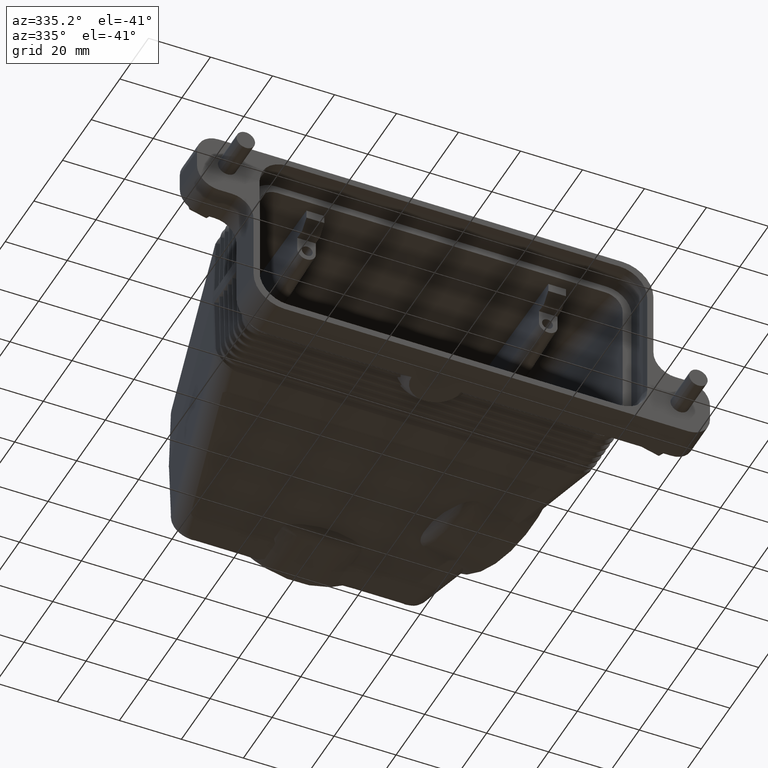
[diagram: clean part render]
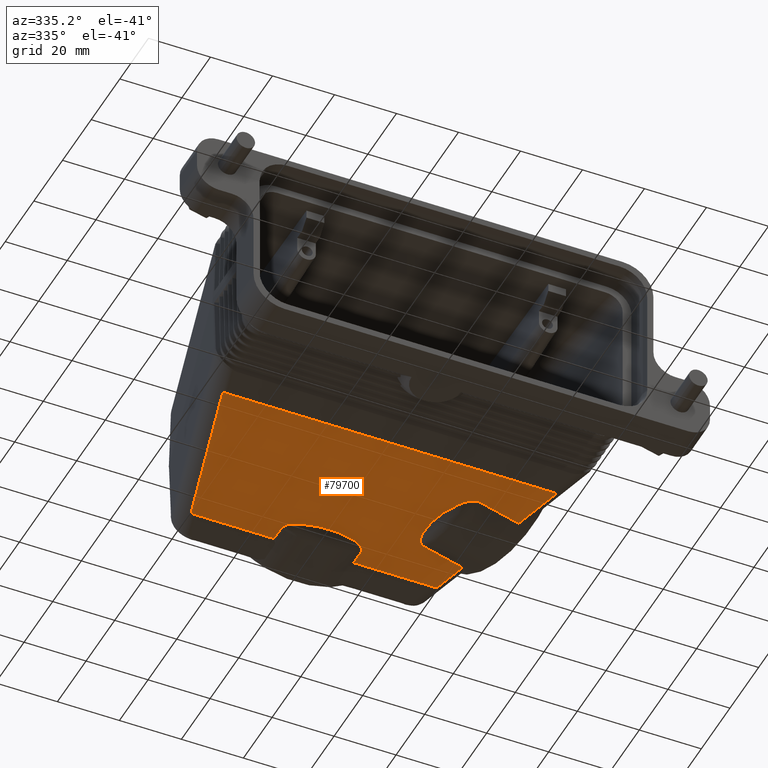
[diagram: same view with one face highlighted and labeled with its STEP entity id]
A machine part, auxiliary view. The second image highlights one B-rep face of the part: STEP entity #79700.
In plain terms, the highlighted planar face has unit normal (0, 0, -1).
Its self-contained STEP definition (entity closure, byte-faithful):
#72690=CARTESIAN_POINT('',(-16.382151999333,1.8228898536252,-13.));
#72700=DIRECTION('',(0.,0.,-1.));
#72710=DIRECTION('',(-1.,0.,0.));
#72720=AXIS2_PLACEMENT_3D('',#72690,#72700,#72710);
#72730=PLANE('',#72720);
#72740=CARTESIAN_POINT('',(-10.2698614213349,87.5367836871194,-13.));
#72750=DIRECTION('',(0.,-1.,0.));
#72760=VECTOR('',#72750,1.);
#72770=LINE('',#72740,#72760);
#72780=CARTESIAN_POINT('',(-10.2698614213349,93.794143,-13.));
#72790=VERTEX_POINT('',#72780);
#72800=CARTESIAN_POINT('',(-10.2698614213349,88.7794243742386,-13.));
#72810=VERTEX_POINT('',#72800);
#72820=EDGE_CURVE('',#72790,#72810,#72770,.T.);
#72830=ORIENTED_EDGE('',*,*,#72820,.F.);
#72840=CARTESIAN_POINT('',(-23.115094,88.7794243742386,13.));
#72850=DIRECTION('',(0.,1.,0.));
#72860=DIRECTION('',(-1.,0.,0.));
#72870=AXIS2_PLACEMENT_3D('',#72840,#72850,#72860);
#72880=TOROIDAL_SURFACE('',#72870,23.,6.);
#72890=CARTESIAN_POINT('',(-10.2698614213349,88.7794243742387,-13.));
#72900=CARTESIAN_POINT('',(-10.2698614213349,88.7441683574909,-13.));
#72910=CARTESIAN_POINT('',(-10.2705633258133,88.7089613604424,-13.));
#72920=CARTESIAN_POINT('',(-10.2719591929961,88.6738373257415,-13.));
#72930=CARTESIAN_POINT('',(-10.2733544085103,88.6387296888978,-13.));
#72940=CARTESIAN_POINT('',(-10.2754442702357,88.6036463248573,-13.));
#72950=CARTESIAN_POINT('',(-10.2782326359868,88.5685455996329,-13.));
#72960=CARTESIAN_POINT('',(-10.2810205318663,88.5334507892829,-13.));
#72970=CARTESIAN_POINT('',(-10.2845056667718,88.4983639655481,
-12.9999999999999));
#72980=CARTESIAN_POINT('',(-10.2886848929599,88.4633176965488,
-12.9999999999999));
#72990=CARTESIAN_POINT('',(-10.2928641095357,88.4282715081561,
-12.9999999999999));
#73000=CARTESIAN_POINT('',(-10.2977374098294,88.3932661317754,
-12.9999999999996));
#73010=CARTESIAN_POINT('',(-10.3032972452355,88.3583359123003,
-12.9999999999996));
#73020=CARTESIAN_POINT('',(-10.3088570721958,88.3234057458868,
-12.9999999999996));
#73030=CARTESIAN_POINT('',(-10.31510340512,88.2885509949185,
-12.999999999999));
#73040=CARTESIAN_POINT('',(-10.3220241278034,88.2538067962249,
-12.999999999999));
#73050=CARTESIAN_POINT('',(-10.3289448448673,88.219062625743,
-12.999999999999));
#73060=CARTESIAN_POINT('',(-10.3365399034145,88.1844292588844,
-12.999999999998));
#73070=CARTESIAN_POINT('',(-10.3447926524544,88.1499417308457,
-12.999999999998));
#73080=CARTESIAN_POINT('',(-10.3530454000627,88.1154542087899,
-12.999999999998));
#73090=CARTESIAN_POINT('',(-10.3619557740423,88.0811127628782,
-12.9999999999973));
#73100=CARTESIAN_POINT('',(-10.3715027943142,88.0469515373046,
-12.9999999999973));
#73110=CARTESIAN_POINT('',(-10.3810498184557,88.012790297885,
-12.9999999999973));
#73120=CARTESIAN_POINT('',(-10.391233412655,87.9788094969776,
-12.9999999999973));
#73130=CARTESIAN_POINT('',(-10.4020286181067,87.9450417072836,
-12.9999999999973));
#73140=CARTESIAN_POINT('',(-10.4128238336581,87.9112738859973,
-12.9999999999973));
#73150=CARTESIAN_POINT('',(-10.42423057594,87.8777192715175,
-12.9999999999983));
#73160=CARTESIAN_POINT('',(-10.436220375027,87.8444082912519,
-12.9999999999983));
#73170=CARTESIAN_POINT('',(-10.4482101912658,87.811097263334,
-12.9999999999983));
#73180=CARTESIAN_POINT('',(-10.4607829751227,87.7780300407687,
-12.9999999999995));
#73190=CARTESIAN_POINT('',(-10.4739073055861,87.7452344310102,
-12.9999999999995));
#73200=CARTESIAN_POINT('',(-10.5001624427278,87.6796270284646,
-12.9999999999995));
#73210=CARTESIAN_POINT('',(-10.5285950860882,87.6151757965529,-13.));
#73220=CARTESIAN_POINT('',(-10.5590158642711,87.5518820210018,-13.));
#73230=CARTESIAN_POINT('',(-10.5894652454807,87.4885287337069,-13.));
#73240=CARTESIAN_POINT('',(-10.622027821136,87.4260865149887,
-12.9999999999842));
#73250=CARTESIAN_POINT('',(-10.6565412025883,87.3646210714529,
-12.9999999999842));
#73260=CARTESIAN_POINT('',(-10.6910544734411,87.3031558248858,
-12.9999999999842));
#73270=CARTESIAN_POINT('',(-10.7275180521451,87.2426684790179,-13.));
#73280=CARTESIAN_POINT('',(-10.7657555276422,87.1832242523695,-13.));
#73290=CARTESIAN_POINT('',(-10.8039929481112,87.123780111268,-13.));
#73300=CARTESIAN_POINT('',(-10.8440036449816,87.0653800898206,-13.));
#73310=CARTESIAN_POINT('',(-10.8855985614645,87.0080844266053,-13.));
#73320=CARTESIAN_POINT('',(-10.9271934782373,86.9507887629908,-13.));
#73330=CARTESIAN_POINT('',(-10.9703719639585,86.8945982750502,-13.));
#73340=CARTESIAN_POINT('',(-11.0149346042383,86.8395652293547,-13.));
#73350=CARTESIAN_POINT('',(-11.0594972947849,86.7845321215818,-13.));
#73360=CARTESIAN_POINT('',(-11.1054435208509,86.7306570833294,
-12.9999999999694));
#73370=CARTESIAN_POINT('',(-11.1525661431031,86.6779827269103,
-12.9999999999694));
#73380=CARTESIAN_POINT('',(-11.1996888586925,86.6253082661573,
-12.9999999999694));
#73390=CARTESIAN_POINT('',(-11.2479874173027,86.5738349441023,
-12.9999999999999));
#73400=CARTESIAN_POINT('',(-11.2972495915493,86.5235950392977,
-12.9999999999999));
#73410=CARTESIAN_POINT('',(-11.3218842156875,86.4984714796796,
-12.9999999999999));
#73420=CARTESIAN_POINT('',(-11.34673615355,86.4736788485884,
-12.9999999999997));
#73430=CARTESIAN_POINT('',(-11.3718781129352,86.4491242103651,
-12.9999999999997));
#73440=CARTESIAN_POINT('',(-11.3970159853523,86.4245735636375,
-12.9999999999997));
#73450=CARTESIAN_POINT('',(-11.4224213416233,86.4002839997991,
-12.9999999999849));
#73460=CARTESIAN_POINT('',(-11.448081661591,86.3762509907311,
-12.9999999999849));
#73470=CARTESIAN_POINT('',(-11.499402302012,86.3281849721404,
-12.9999999999849));
#73480=CARTESIAN_POINT('',(-11.5517425768027,86.2811448937615,-13.));
#73490=CARTESIAN_POINT('',(-11.6050066550675,86.2350969685196,-13.));
#73500=CARTESIAN_POINT('',(-11.6582707775688,86.1890490050344,-13.));
#73510=CARTESIAN_POINT('',(-11.7124589948878,86.1439930556784,-13.));
#73520=CARTESIAN_POINT('',(-11.7674798604908,86.0998983347892,-13.));
#73530=CARTESIAN_POINT('',(-11.8225007468189,86.0558035972904,-13.));
#73540=CARTESIAN_POINT('',(-11.8783544981297,86.0126700092074,-13.));
#73550=CARTESIAN_POINT('',(-11.9349525348068,85.9704695170035,-13.));
#73560=CARTESIAN_POINT('',(-12.0481482638747,85.8860687893016,-13.));
#73570=CARTESIAN_POINT('',(-12.1643216553677,85.8053977594636,-13.));
#73580=CARTESIAN_POINT('',(-12.2827805430061,85.7282592535334,-13.));
#73590=CARTESIAN_POINT('',(-12.4012394123477,85.6511207595179,-13.));
#73600=CARTESIAN_POINT('',(-12.5219860797627,85.577514797803,-13.));
#73610=CARTESIAN_POINT('',(-12.64433578855,85.507266478259,-13.));
#73620=CARTESIAN_POINT('',(-12.7055106296458,85.4721423261222,-13.));
#73630=CARTESIAN_POINT('',(-12.7670863077559,85.437857810125,
-12.9999999999985));
#73640=CARTESIAN_POINT('',(-12.8289770918813,85.4043921884262,
-12.9999999999985));
#73650=CARTESIAN_POINT('',(-12.8908725930641,85.3709240161174,
-12.9999999999985));
#73660=CARTESIAN_POINT('',(-12.9530354295124,85.3382981090075,
-12.9999999999854));
#73670=CARTESIAN_POINT('',(-13.0156419577173,85.3063637547771,
-12.9999999999854));
#73680=CARTESIAN_POINT('',(-13.0782354131716,85.2744360686987,
-12.9999999999854));
#73690=CARTESIAN_POINT('',(-13.1412093379758,85.2432339887852,-13.));
#73700=CARTESIAN_POINT('',(-13.2045333974804,85.2127236392176,-13.));
#73710=CARTESIAN_POINT('',(-13.267857498851,85.1822132694784,-13.));
#73720=CARTESIAN_POINT('',(-13.3315318544051,85.1523946056898,-13.));
#73730=CARTESIAN_POINT('',(-13.3955286816189,85.1232362430488,-13.));
#73740=CARTESIAN_POINT('',(-13.5235222765378,85.0649195448804,-13.));
#73750=CARTESIAN_POINT('',(-13.6528051973756,85.0092416336317,-13.));
#73760=CARTESIAN_POINT('',(-13.783176132093,84.9559784616022,-13.));
#73770=CARTESIAN_POINT('',(-13.9135473360645,84.9027151795686,-13.));
#73780=CARTESIAN_POINT('',(-14.0450087389892,84.8518664539964,-13.));
#73790=CARTESIAN_POINT('',(-14.1773777622079,84.8032384336845,-13.));
#73800=CARTESIAN_POINT('',(-14.3097468522386,84.7546103888282,-13.));
#73810=CARTESIAN_POINT('',(-14.4430250262096,84.7082030462674,-13.));
#73820=CARTESIAN_POINT('',(-14.5770392734894,84.6638470645765,-13.));
#73830=CARTESIAN_POINT('',(-14.7110534678495,84.619491100401,-13.));
#73840=CARTESIAN_POINT('',(-14.8458046971921,84.5771865749723,-13.));
#73850=CARTESIAN_POINT('',(-14.9811237758396,84.5367836871201,-13.));
#73860=B_SPLINE_CURVE_WITH_KNOTS('',3,(#72890,#72900,#72910,#72920,
#72930,#72940,#72950,#72960,#72970,#72980,#72990,#73000,#73010,#73020,
#73030,#73040,#73050,#73060,#73070,#73080,#73090,#73100,#73110,#73120,
#73130,#73140,#73150,#73160,#73170,#73180,#73190,#73200,#73210,#73220,
#73230,#73240,#73250,#73260,#73270,#73280,#73290,#73300,#73310,#73320,
#73330,#73340,#73350,#73360,#73370,#73380,#73390,#73400,#73410,#73420,
#73430,#73440,#73450,#73460,#73470,#73480,#73490,#73500,#73510,#73520,
#73530,#73540,#73550,#73560,#73570,#73580,#73590,#73600,#73610,#73620,
#73630,#73640,#73650,#73660,#73670,#73680,#73690,#73700,#73710,#73720,
#73730,#73740,#73750,#73760,#73770,#73780,#73790,#73800,#73810,#73820,
#73830,#73840,#73850),.UNSPECIFIED.,.F.,.F.,(4,3,3,3,3,3,3,3,3,3,3,3,3,3
,3,3,3,3,3,3,3,3,3,3,3,3,3,3,3,3,3,3,4),(0.,0.105614828074848,
0.211100154996272,0.3168527393641,0.422853359561736,0.529053383189475,
0.635391226949507,0.741794930136564,0.848184421796655,0.954473583815512,
1.06057221455941,1.27186703660491,1.48303731586988,1.6948060991172,
1.90705176136338,2.11950641877278,2.33178082575836,2.54338580403469,
2.6488170825173,2.75425849919629,2.96534092942479,3.17672063954875,
3.38838893365118,3.81231166485151,4.23611225661454,4.44748385732094,
4.65832854388547,4.86916106926234,5.08008499408407,5.50230422713393,
5.92508493217498,6.34837559048084,6.77198199247476),.UNSPECIFIED.);
#73870=SURFACE_CURVE('',#73860,(#72880,#72730),.CURVE_3D.);
#73880=CARTESIAN_POINT('',(-14.9811237756801,84.5367836871677,-13.));
#73890=VERTEX_POINT('',#73880);
#73900=EDGE_CURVE('',#72810,#73890,#73870,.T.);
#73910=ORIENTED_EDGE('',*,*,#73900,.F.);
#73920=CARTESIAN_POINT('',(-23.115094,82.294143,13.));
#73930=DIRECTION('',(0.,1.,0.));
#73940=DIRECTION('',(0.,0.,1.));
#73950=AXIS2_PLACEMENT_3D('',#73920,#73930,#73940);
#73960=CONICAL_SURFACE('',#73950,25.,0.785398163397426);
#73970=CARTESIAN_POINT('',(-14.9811237758418,84.5367836871195,-13.));
#73980=CARTESIAN_POINT('',(-15.3107595849481,84.4383626901654,-13.));
#73990=CARTESIAN_POINT('',(-15.6422448402959,84.344841606654,-13.));
#74000=CARTESIAN_POINT('',(-15.9753514743577,84.2566340446432,-13.));
#74010=CARTESIAN_POINT('',(-16.3084576477654,84.168426604615,-13.));
#74020=CARTESIAN_POINT('',(-16.6431838187528,84.0855337994273,-13.));
#74030=CARTESIAN_POINT('',(-16.9792783948373,84.0083383489256,-13.));
#74040=CARTESIAN_POINT('',(-17.1473254394704,83.9697406795819,-13.));
#74050=CARTESIAN_POINT('',(-17.3157139577886,83.9325668522344,-13.));
#74060=CARTESIAN_POINT('',(-17.4844103088486,83.8968608842652,-13.));
#74070=CARTESIAN_POINT('',(-17.6531066419241,83.8611549201025,-13.));
#74080=CARTESIAN_POINT('',(-17.8221107328606,83.8269168535102,-13.));
#74090=CARTESIAN_POINT('',(-17.9913877433026,83.7941876377911,-13.));
#74100=CARTESIAN_POINT('',(-18.1606647427989,83.7614584241883,-13.));
#74110=CARTESIAN_POINT('',(-18.330214575469,83.7302380990079,-13.));
#74120=CARTESIAN_POINT('',(-18.5000013969685,83.7005641837681,-13.));
#74130=CARTESIAN_POINT('',(-18.6697882158254,83.6708902689901,-13.));
#74140=CARTESIAN_POINT('',(-18.8398119257784,83.6427627999782,-13.));
#74150=CARTESIAN_POINT('',(-19.0100359203934,83.6162155216869,-13.));
#74160=CARTESIAN_POINT('',(-19.1802599220086,83.5896682423039,-13.));
#74170=CARTESIAN_POINT('',(-19.3506840995636,83.5647011865831,-13.));
#74180=CARTESIAN_POINT('',(-19.5212713834715,83.5413440126618,-13.));
#74190=CARTESIAN_POINT('',(-19.6918586854138,83.5179868362711,-13.));
#74200=CARTESIAN_POINT('',(-19.862608974806,83.496239570547,-13.));
#74210=CARTESIAN_POINT('',(-20.0334850740385,83.4761275231901,-13.));
#74220=CARTESIAN_POINT('',(-20.2043612037568,83.456015472245,-13.));
#74230=CARTESIAN_POINT('',(-20.3753630154552,83.4375386632954,-13.));
#74240=CARTESIAN_POINT('',(-20.5464536343268,83.4207178487659,-13.));
#74250=CARTESIAN_POINT('',(-20.7175442975665,83.4038970298743,-13.));
#74260=CARTESIAN_POINT('',(-20.8887236327125,83.3887322227195,
-12.9999999999991));
#74270=CARTESIAN_POINT('',(-21.0599555321809,83.3752394900177,
-12.9999999999991));
#74280=CARTESIAN_POINT('',(-21.2311874911168,83.3617467526301,
-12.9999999999991));
#74290=CARTESIAN_POINT('',(-21.4024718737465,83.3499260997879,
-12.9999999999998));
#74300=CARTESIAN_POINT('',(-21.5737738524116,83.3397888510306,
-12.9999999999998));
#74310=CARTESIAN_POINT('',(-21.7450759071704,83.3296515977702,
-12.9999999999998));
#74320=CARTESIAN_POINT('',(-21.9163954145583,83.3211977507491,-13.));
#74330=CARTESIAN_POINT('',(-22.0876993830273,83.314433922643,-13.));
#74340=CARTESIAN_POINT('',(-22.2590034452575,83.3076700908349,-13.));
#74350=CARTESIAN_POINT('',(-22.430291824852,83.3025962717284,-13.));
#74360=CARTESIAN_POINT('',(-22.6015339568222,83.2992145038038,-13.));
#74370=CARTESIAN_POINT('',(-22.7727762012005,83.2958327336593,-13.));
#74380=CARTESIAN_POINT('',(-22.9439720567168,83.294143,-13.));
#74390=CARTESIAN_POINT('',(-23.115094,83.294143,-13.));
#74400=CARTESIAN_POINT('',(-23.2862159432832,83.294143,-13.));
#74410=CARTESIAN_POINT('',(-23.4574117987995,83.2958327336593,-13.));
#74420=CARTESIAN_POINT('',(-23.6286540431778,83.2992145038038,-13.));
#74430=CARTESIAN_POINT('',(-23.799896175148,83.3025962717284,-13.));
#74440=CARTESIAN_POINT('',(-23.9711845547425,83.3076700908348,-13.));
#74450=CARTESIAN_POINT('',(-24.1424886169726,83.314433922643,-13.));
#74460=CARTESIAN_POINT('',(-24.3137925854417,83.3211977507491,-13.));
#74470=CARTESIAN_POINT('',(-24.4851120928296,83.3296515977702,
-12.9999999999998));
#74480=CARTESIAN_POINT('',(-24.6564141475884,83.3397888510305,
-12.9999999999998));
#74490=CARTESIAN_POINT('',(-24.8277161262535,83.3499260997878,
-12.9999999999998));
#74500=CARTESIAN_POINT('',(-24.9990005088832,83.3617467526301,
-12.9999999999991));
#74510=CARTESIAN_POINT('',(-25.1702324678191,83.3752394900177,
-12.9999999999991));
#74520=CARTESIAN_POINT('',(-25.3414643672867,83.3887322227194,
-12.9999999999991));
#74530=CARTESIAN_POINT('',(-25.5126437024327,83.4038970298743,-13.));
#74540=CARTESIAN_POINT('',(-25.6837343656732,83.4207178487659,-13.));
#74550=CARTESIAN_POINT('',(-25.8548249845448,83.4375386632954,-13.));
#74560=CARTESIAN_POINT('',(-26.0258267962432,83.456015472245,-13.));
#74570=CARTESIAN_POINT('',(-26.1967029259615,83.4761275231901,-13.));
#74580=CARTESIAN_POINT('',(-26.3675790251929,83.4962395705469,-13.));
#74590=CARTESIAN_POINT('',(-26.5383293145851,83.517986836271,-13.));
#74600=CARTESIAN_POINT('',(-26.7089166165285,83.5413440126618,-13.));
#74610=CARTESIAN_POINT('',(-26.8795039004352,83.5647011865829,-13.));
#74620=CARTESIAN_POINT('',(-27.0499280779902,83.5896682423037,-13.));
#74630=CARTESIAN_POINT('',(-27.2201520796066,83.6162155216869,-13.));
#74640=CARTESIAN_POINT('',(-27.3903760742215,83.6427627999782,-13.));
#74650=CARTESIAN_POINT('',(-27.5603997841745,83.6708902689901,-13.));
#74660=CARTESIAN_POINT('',(-27.7301866030314,83.7005641837681,-13.));
#74670=CARTESIAN_POINT('',(-27.8999734245297,83.7302380990077,-13.));
#74680=CARTESIAN_POINT('',(-28.0695232571999,83.7614584241881,-13.));
#74690=CARTESIAN_POINT('',(-28.2388002566974,83.7941876377911,-13.));
#74700=CARTESIAN_POINT('',(-28.4080772671394,83.8269168535102,-13.));
#74710=CARTESIAN_POINT('',(-28.5770813580759,83.8611549201025,-13.));
#74720=CARTESIAN_POINT('',(-28.7457776911514,83.8968608842651,-13.));
#74730=CARTESIAN_POINT('',(-28.9144740421811,83.9325668522279,-13.));
#74740=CARTESIAN_POINT('',(-29.0828625605848,83.9697406795946,-13.));
#74750=CARTESIAN_POINT('',(-29.2509096051626,84.0083383489256,-13.));
#74760=CARTESIAN_POINT('',(-29.5870041812472,84.0855337994273,-13.));
#74770=CARTESIAN_POINT('',(-29.9217303522345,84.1684266046149,-13.));
#74780=CARTESIAN_POINT('',(-30.2548365256423,84.2566340446432,-13.));
#74790=CARTESIAN_POINT('',(-30.5879431597041,84.344841606654,-13.));
#74800=CARTESIAN_POINT('',(-30.9194284150518,84.4383626901654,-13.));
#74810=CARTESIAN_POINT('',(-31.2490642241582,84.5367836871194,-13.));
#74820=B_SPLINE_CURVE_WITH_KNOTS('',3,(#73970,#73980,#73990,#74000,
#74010,#74020,#74030,#74040,#74050,#74060,#74070,#74080,#74090,#74100,
#74110,#74120,#74130,#74140,#74150,#74160,#74170,#74180,#74190,#74200,
#74210,#74220,#74230,#74240,#74250,#74260,#74270,#74280,#74290,#74300,
#74310,#74320,#74330,#74340,#74350,#74360,#74370,#74380,#74390,#74400,
#74410,#74420,#74430,#74440,#74450,#74460,#74470,#74480,#74490,#74500,
#74510,#74520,#74530,#74540,#74550,#74560,#74570,#74580,#74590,#74600,
#74610,#74620,#74630,#74640,#74650,#74660,#74670,#74680,#74690,#74700,
#74710,#74720,#74730,#74740,#74750,#74760,#74770,#74780,#74790,#74800,
#74810),.UNSPECIFIED.,.F.,.F.,(4,3,3,3,3,3,3,3,3,3,3,3,3,3,3,3,3,3,3,3,3
,3,3,3,3,3,3,3,4),(0.,1.03298576064086,2.06720896143214,2.58450197661142
,3.10177831785828,3.61894404973583,4.13591347124195,4.65260986712268,
5.16896633787134,5.68492672402671,6.20044664120477,6.71549464179744,
7.23005351922368,7.74412176568094,8.25771519300082,8.7713086203207,
9.28537686677766,9.79993574420346,10.3149837447961,10.830503661974,
11.3464640481292,11.8628205188778,12.3795169147586,12.8964863362651,
13.4136520681432,13.9309284093902,14.4482214245693,15.4824446253603,
16.5154303860008),.UNSPECIFIED.);
#74830=SURFACE_CURVE('',#74820,(#73960,#72730),.CURVE_3D.);
#74840=CARTESIAN_POINT('',(-31.2490642243177,84.536783687167,-13.));
#74850=VERTEX_POINT('',#74840);
#74860=EDGE_CURVE('',#73890,#74850,#74830,.T.);
#74870=ORIENTED_EDGE('',*,*,#74860,.F.);
#74880=CARTESIAN_POINT('',(-31.2490642241582,84.5367836871194,-13.));
#74890=CARTESIAN_POINT('',(-31.3843833028057,84.5771865749716,-13.));
#74900=CARTESIAN_POINT('',(-31.5191345321484,84.6194911004003,-13.));
#74910=CARTESIAN_POINT('',(-31.6531487265085,84.6638470645758,-13.));
#74920=CARTESIAN_POINT('',(-31.7871629737884,84.7082030462667,-13.));
#74930=CARTESIAN_POINT('',(-31.9204411477594,84.7546103888275,-13.));
#74940=CARTESIAN_POINT('',(-32.0528102377902,84.8032384336838,-13.));
#74950=CARTESIAN_POINT('',(-32.1851792610089,84.8518664539956,-13.));
#74960=CARTESIAN_POINT('',(-32.3166406639337,84.9027151795679,-13.));
#74970=CARTESIAN_POINT('',(-32.4470118679052,84.9559784616014,-13.));
#74980=CARTESIAN_POINT('',(-32.5773828026228,85.009241633631,-13.));
#74990=CARTESIAN_POINT('',(-32.7066657234606,85.0649195448797,-13.));
#75000=CARTESIAN_POINT('',(-32.8346593183795,85.1232362430481,-13.));
#75010=CARTESIAN_POINT('',(-32.8986561455933,85.152394605689,-13.));
#75020=CARTESIAN_POINT('',(-32.9623305011475,85.1822132694776,-13.));
#75030=CARTESIAN_POINT('',(-33.0256546025181,85.2127236392168,-13.));
#75040=CARTESIAN_POINT('',(-33.0889786620228,85.2432339887845,-13.));
#75050=CARTESIAN_POINT('',(-33.151952586827,85.274436068698,
-12.9999999999854));
#75060=CARTESIAN_POINT('',(-33.2145460422813,85.3063637547763,
-12.9999999999854));
#75070=CARTESIAN_POINT('',(-33.2771525705187,85.3382981090233,
-12.9999999999854));
#75080=CARTESIAN_POINT('',(-33.3393154069666,85.370924016134,
-12.9999999999985));
#75090=CARTESIAN_POINT('',(-33.4012109081173,85.4043921884255,
-12.9999999999985));
#75100=CARTESIAN_POINT('',(-33.4631016922428,85.4378578101243,
-12.9999999999985));
#75110=CARTESIAN_POINT('',(-33.5246773703529,85.4721423261214,-13.));
#75120=CARTESIAN_POINT('',(-33.5858522114487,85.5072664782583,-13.));
#75130=CARTESIAN_POINT('',(-33.7082019202361,85.5775147978023,-13.));
#75140=CARTESIAN_POINT('',(-33.8289485876512,85.6511207595171,-13.));
#75150=CARTESIAN_POINT('',(-33.9474074569928,85.7282592535327,-13.));
#75160=CARTESIAN_POINT('',(-34.0658663446311,85.8053977594628,-13.));
#75170=CARTESIAN_POINT('',(-34.1820397361244,85.8860687893009,-13.));
#75180=CARTESIAN_POINT('',(-34.2952354651922,85.9704695170027,-13.));
#75190=CARTESIAN_POINT('',(-34.351833501875,86.0126700092109,-13.));
#75200=CARTESIAN_POINT('',(-34.4076872531859,86.0558035972942,-13.));
#75210=CARTESIAN_POINT('',(-34.4627081395083,86.0998983347884,-13.));
#75220=CARTESIAN_POINT('',(-34.5177290051195,86.1439930556842,-13.));
#75230=CARTESIAN_POINT('',(-34.5719172224381,86.1890490050404,-13.));
#75240=CARTESIAN_POINT('',(-34.6251813449317,86.2350969685189,-13.));
#75250=CARTESIAN_POINT('',(-34.6784454231965,86.2811448937607,-13.));
#75260=CARTESIAN_POINT('',(-34.7307856979874,86.3281849721398,
-12.9999999999849));
#75270=CARTESIAN_POINT('',(-34.7821063384083,86.3762509907304,
-12.9999999999849));
#75280=CARTESIAN_POINT('',(-34.8077666583761,86.4002839997985,
-12.9999999999849));
#75290=CARTESIAN_POINT('',(-34.833172014647,86.4245735636368,
-12.9999999999997));
#75300=CARTESIAN_POINT('',(-34.8583098870642,86.4491242103644,
-12.9999999999997));
#75310=CARTESIAN_POINT('',(-34.8834518464435,86.473678848582,
-12.9999999999997));
#75320=CARTESIAN_POINT('',(-34.9083037843062,86.4984714796731,
-12.9999999999999));
#75330=CARTESIAN_POINT('',(-34.9329384084501,86.523595039297,
-12.9999999999999));
#75340=CARTESIAN_POINT('',(-34.9822005826968,86.5738349441017,
-12.9999999999999));
#75350=CARTESIAN_POINT('',(-35.0304991413069,86.6253082661567,
-12.9999999999694));
#75360=CARTESIAN_POINT('',(-35.0776218568964,86.6779827269097,
-12.9999999999694));
#75370=CARTESIAN_POINT('',(-35.1247444791236,86.7306570833009,
-12.9999999999694));
#75380=CARTESIAN_POINT('',(-35.1706907051912,86.7845321215523,-13.));
#75390=CARTESIAN_POINT('',(-35.2152533957612,86.8395652293541,-13.));
#75400=CARTESIAN_POINT('',(-35.2598160360143,86.8945982750165,-13.));
#75410=CARTESIAN_POINT('',(-35.3029945217372,86.9507887629557,-13.));
#75420=CARTESIAN_POINT('',(-35.3445894385351,87.0080844266047,-13.));
#75430=CARTESIAN_POINT('',(-35.3861843550181,87.06538008982,-13.));
#75440=CARTESIAN_POINT('',(-35.4261950518884,87.1237801112674,-13.));
#75450=CARTESIAN_POINT('',(-35.4644324723575,87.1832242523689,-13.));
#75460=CARTESIAN_POINT('',(-35.5026699478546,87.2426684790173,-13.));
#75470=CARTESIAN_POINT('',(-35.5391335265587,87.3031558248853,
-12.9999999999842));
#75480=CARTESIAN_POINT('',(-35.5736467974115,87.3646210714524,
-12.9999999999842));
#75490=CARTESIAN_POINT('',(-35.6081601788638,87.4260865149882,
-12.9999999999842));
#75500=CARTESIAN_POINT('',(-35.640722754519,87.4885287337064,-13.));
#75510=CARTESIAN_POINT('',(-35.6711721357287,87.5518820210013,-13.));
#75520=CARTESIAN_POINT('',(-35.7015929139117,87.6151757965525,-13.));
#75530=CARTESIAN_POINT('',(-35.730025557272,87.679627028464,
-12.9999999999995));
#75540=CARTESIAN_POINT('',(-35.7562806944138,87.7452344310099,
-12.9999999999995));
#75550=CARTESIAN_POINT('',(-35.7694050248772,87.7780300407683,
-12.9999999999995));
#75560=CARTESIAN_POINT('',(-35.7819778087341,87.8110972633336,
-12.9999999999983));
#75570=CARTESIAN_POINT('',(-35.7939676249729,87.8444082912516,
-12.9999999999983));
#75580=CARTESIAN_POINT('',(-35.8059574240589,87.8777192715141,
-12.9999999999983));
#75590=CARTESIAN_POINT('',(-35.8173641663408,87.911273885994,
-12.9999999999973));
#75600=CARTESIAN_POINT('',(-35.8281593818933,87.9450417072833,
-12.9999999999973));
#75610=CARTESIAN_POINT('',(-35.838954587345,87.9788094969771,
-12.9999999999973));
#75620=CARTESIAN_POINT('',(-35.8491381815443,88.0127902978848,
-12.9999999999973));
#75630=CARTESIAN_POINT('',(-35.8586852056857,88.0469515373043,
-12.9999999999973));
#75640=CARTESIAN_POINT('',(-35.8682322259584,88.0811127628805,
-12.9999999999973));
#75650=CARTESIAN_POINT('',(-35.877142599938,88.1154542087923,
-12.999999999998));
#75660=CARTESIAN_POINT('',(-35.8853953475456,88.1499417308454,
-12.999999999998));
#75670=CARTESIAN_POINT('',(-35.8936480965855,88.184429258884,
-12.999999999998));
#75680=CARTESIAN_POINT('',(-35.9012431551327,88.2190626257428,
-12.999999999999));
#75690=CARTESIAN_POINT('',(-35.9081638721966,88.2538067962246,
-12.999999999999));
#75700=CARTESIAN_POINT('',(-35.91508459488,88.2885509949182,
-12.999999999999));
#75710=CARTESIAN_POINT('',(-35.9213309278043,88.3234057458867,
-12.9999999999996));
#75720=CARTESIAN_POINT('',(-35.9268907547645,88.3583359123001,
-12.9999999999996));
#75730=CARTESIAN_POINT('',(-35.9324505901708,88.3932661317764,
-12.9999999999996));
#75740=CARTESIAN_POINT('',(-35.9373238904645,88.4282715081575,
-12.9999999999999));
#75750=CARTESIAN_POINT('',(-35.9415031070402,88.4633176965486,
-12.9999999999999));
#75760=CARTESIAN_POINT('',(-35.9456823332282,88.4983639655474,
-12.9999999999999));
#75770=CARTESIAN_POINT('',(-35.9491674681337,88.5334507892819,-13.));
#75780=CARTESIAN_POINT('',(-35.9519553640132,88.5685455996327,-13.));
#75790=CARTESIAN_POINT('',(-35.9547437297643,88.6036463248571,-13.));
#75800=CARTESIAN_POINT('',(-35.9568335914897,88.6387296888978,-13.));
#75810=CARTESIAN_POINT('',(-35.958228807004,88.6738373257414,-13.));
#75820=CARTESIAN_POINT('',(-35.9596246741868,88.708961360443,-13.));
#75830=CARTESIAN_POINT('',(-35.9603265786652,88.7441683574915,-13.));
#75840=CARTESIAN_POINT('',(-35.9603265786652,88.7794243742386,-13.));
#75850=B_SPLINE_CURVE_WITH_KNOTS('',3,(#74880,#74890,#74900,#74910,
#74920,#74930,#74940,#74950,#74960,#74970,#74980,#74990,#75000,#75010,
#75020,#75030,#75040,#75050,#75060,#75070,#75080,#75090,#75100,#75110,
#75120,#75130,#75140,#75150,#75160,#75170,#75180,#75190,#75200,#75210,
#75220,#75230,#75240,#75250,#75260,#75270,#75280,#75290,#75300,#75310,
#75320,#75330,#75340,#75350,#75360,#75370,#75380,#75390,#75400,#75410,
#75420,#75430,#75440,#75450,#75460,#75470,#75480,#75490,#75500,#75510,
#75520,#75530,#75540,#75550,#75560,#75570,#75580,#75590,#75600,#75610,
#75620,#75630,#75640,#75650,#75660,#75670,#75680,#75690,#75700,#75710,
#75720,#75730,#75740,#75750,#75760,#75770,#75780,#75790,#75800,#75810,
#75820,#75830,#75840),.UNSPECIFIED.,.F.,.F.,(4,3,3,3,3,3,3,3,3,3,3,3,3,3
,3,3,3,3,3,3,3,3,3,3,3,3,3,3,3,3,3,3,4),(0.,0.423606401994082,
0.84689706030008,1.26967776534121,1.69189699839118,1.90282092321298,
2.11365344858983,2.32449813515437,2.53586973586087,2.95967032762403,
3.38359305882452,3.59526135292704,3.80664106305112,4.0177234932797,
4.12316490995868,4.2285961884413,4.44020116671773,4.65247557370333,
4.8649302311128,5.07717589335908,5.28894467660647,5.50011495587151,
5.71140977791712,5.81750840866104,5.9237975706799,6.03018706234005,
6.13659076552716,6.24292860928719,6.34912863291501,6.45512925311269,
6.56088183748053,6.66636716440197,6.77198199247684),.UNSPECIFIED.);
#75860=SURFACE_CURVE('',#75850,(#72880,#72730),.CURVE_3D.);
#75870=CARTESIAN_POINT('',(-35.9603265786652,88.7794243742386,-13.));
#75880=VERTEX_POINT('',#75870);
#75890=EDGE_CURVE('',#74850,#75880,#75860,.T.);
#75900=ORIENTED_EDGE('',*,*,#75890,.F.);
#75910=CARTESIAN_POINT('',(-35.9603265786652,87.5367836871194,-13.));
#75920=DIRECTION('',(0.,-1.,0.));
#75930=VECTOR('',#75920,1.);
#75940=LINE('',#75910,#75930);
#75950=CARTESIAN_POINT('',(-35.9603265786652,93.794143,-13.));
#75960=VERTEX_POINT('',#75950);
#75970=EDGE_CURVE('',#75960,#75880,#75940,.T.);
#75980=ORIENTED_EDGE('',*,*,#75970,.T.);
#75990=CARTESIAN_POINT('',(-126.,93.794143,-13.));
#76000=DIRECTION('',(-1.,0.,0.));
#76010=VECTOR('',#76000,1.);
#76020=LINE('',#75990,#76010);
#76030=CARTESIAN_POINT('',(-62.7799400455621,93.794143,-13.));
#76040=VERTEX_POINT('',#76030);
#76050=EDGE_CURVE('',#75960,#76040,#76020,.T.);
#76060=ORIENTED_EDGE('',*,*,#76050,.F.);
#76070=CARTESIAN_POINT('',(-87.7318274118906,0.672431604126042,-13.));
#76080=DIRECTION('',(0.258819045102521,0.965925826289068,0.));
#76090=VECTOR('',#76080,1.);
#76100=LINE('',#76070,#76090);
#76110=CARTESIAN_POINT('',(-76.9812472444116,40.794143,-13.));
#76120=VERTEX_POINT('',#76110);
#76130=EDGE_CURVE('',#76120,#76040,#76100,.T.);
#76140=ORIENTED_EDGE('',*,*,#76130,.T.);
#76150=CARTESIAN_POINT('',(-126.,40.794143,-13.));
#76160=DIRECTION('',(1.,0.,0.));
#76170=VECTOR('',#76160,1.);
#76180=LINE('',#76150,#76170);
#76190=CARTESIAN_POINT('',(30.7510592444116,40.794143,-13.));
#76200=VERTEX_POINT('',#76190);
#76210=EDGE_CURVE('',#76120,#76200,#76180,.T.);
#76220=ORIENTED_EDGE('',*,*,#76210,.F.);
#76230=CARTESIAN_POINT('',(41.5016394118906,0.672431604126035,-13.));
#76240=DIRECTION('',(0.258819045102521,-0.965925826289068,0.));
#76250=VECTOR('',#76240,1.);
#76260=LINE('',#76230,#76250);
#76270=CARTESIAN_POINT('',(26.2440531456227,57.6145187507029,-13.));
#76280=VERTEX_POINT('',#76270);
#76290=EDGE_CURVE('',#76280,#76200,#76260,.T.);
#76300=ORIENTED_EDGE('',*,*,#76290,.T.);
#76310=CARTESIAN_POINT('',(10.9414596870122,53.5142011913664,-13.));
#76320=DIRECTION('',(-0.965925826289068,-0.258819045102521,
1.38964365120066E-17));
#76330=VECTOR('',#76320,1.);
#76340=LINE('',#76310,#76330);
#76350=CARTESIAN_POINT('',(12.1417584194982,53.8358202674121,-13.));
#76360=VERTEX_POINT('',#76350);
#76370=EDGE_CURVE('',#76280,#76360,#76340,.T.);
#76380=ORIENTED_EDGE('',*,*,#76370,.F.);
#76390=CARTESIAN_POINT('',(8.81716758936793,66.2433621598361,
12.9999999999997));
#76400=DIRECTION('',(-0.965925826289068,-0.258819045102521,0.));
#76410=DIRECTION('',(0.258819045102521,-0.965925826289068,0.));
#76420=AXIS2_PLACEMENT_3D('',#76390,#76400,#76410);
#76430=TOROIDAL_SURFACE('',#76420,23.0000000000004,6.);
#76440=CARTESIAN_POINT('',(12.1417584194982,53.8358202674121,-13.));
#76450=CARTESIAN_POINT('',(12.1077037223903,53.8266953388236,-13.));
#76460=CARTESIAN_POINT('',(12.0735147084281,53.8182610851297,-13.));
#76470=CARTESIAN_POINT('',(12.039226219175,53.8105186201701,-13.));
#76480=CARTESIAN_POINT('',(12.0049537377,53.8027797698247,-13.));
#76490=CARTESIAN_POINT('',(11.9705249142838,53.7957181784587,-13.));
#76500=CARTESIAN_POINT('',(11.9358985351078,53.789326796766,-13.));
#76510=CARTESIAN_POINT('',(11.9012779908726,53.7829364920941,-13.));
#76520=CARTESIAN_POINT('',(11.8664847023765,53.7772217356928,
-12.9999999999999));
#76530=CARTESIAN_POINT('',(11.8315509427037,53.7721879163249,
-12.9999999999999));
#76540=CARTESIAN_POINT('',(11.7966172633789,53.7671541085349,
-12.9999999999999));
#76550=CARTESIAN_POINT('',(11.7615433633451,53.7628012970595,
-12.9999999999996));
#76560=CARTESIAN_POINT('',(11.7263643709455,53.7591310796184,
-12.9999999999996));
#76570=CARTESIAN_POINT('',(11.6911854319855,53.7554608677526,
-12.9999999999996));
#76580=CARTESIAN_POINT('',(11.6559016579332,53.7524732886808,
-12.999999999999));
#76590=CARTESIAN_POINT('',(11.6205501242651,53.7501657331286,
-12.999999999999));
#76600=CARTESIAN_POINT('',(11.5851986192994,53.7478581794499,
-12.999999999999));
#76610=CARTESIAN_POINT('',(11.5497796099986,53.7462306677139,
-12.999999999998));
#76620=CARTESIAN_POINT('',(11.5143312473576,53.7452761820745,
-12.999999999998));
#76630=CARTESIAN_POINT('',(11.4788828908666,53.7443216966008,
-12.999999999998));
#76640=CARTESIAN_POINT('',(11.4434054268633,53.7440402367113,
-12.9999999999973));
#76650=CARTESIAN_POINT('',(11.4079372661511,53.7444203743736,
-12.9999999999973));
#76660=CARTESIAN_POINT('',(11.3724690910658,53.7448005121899,
-12.9999999999973));
#76670=CARTESIAN_POINT('',(11.3370104497447,53.7458422303887,
-12.9999999999973));
#76680=CARTESIAN_POINT('',(11.3015992648161,53.7475298510508,
-12.9999999999973));
#76690=CARTESIAN_POINT('',(11.2661880467543,53.749217473292,
-12.9999999999973));
#76700=CARTESIAN_POINT('',(11.2308244958919,53.7515509669775,
-12.9999999999983));
#76710=CARTESIAN_POINT('',(11.1955453714069,53.7545107074636,
-12.9999999999983));
#76720=CARTESIAN_POINT('',(11.1602661964539,53.7574704521838,
-12.9999999999983));
#76730=CARTESIAN_POINT('',(11.1250716362624,53.7610564018509,
-12.9999999999995));
#76740=CARTESIAN_POINT('',(11.0899966831266,53.7652454031973,
-12.9999999999995));
#76750=CARTESIAN_POINT('',(11.0198294690878,53.7736254729567,
-12.9999999999995));
#76760=CARTESIAN_POINT('',(10.950215450044,53.7844080911892,-13.));
#76770=CARTESIAN_POINT('',(10.8812048808353,53.7974106719427,-13.));
#76780=CARTESIAN_POINT('',(10.8121294246881,53.8104254783259,-13.));
#76790=CARTESIAN_POINT('',(10.7433870582402,53.825717275699,
-12.9999999999842));
#76800=CARTESIAN_POINT('',(10.675083278474,53.8431462147937,
-12.9999999999842));
#76810=CARTESIAN_POINT('',(10.6067797175903,53.8605750980365,
-12.9999999999842));
#76820=CARTESIAN_POINT('',(10.5389159594314,53.8801409333274,-13.));
#76830=CARTESIAN_POINT('',(10.4716006587927,53.9016902004641,-13.));
#76840=CARTESIAN_POINT('',(10.4042854550283,53.923239436589,-13.));
#76850=CARTESIAN_POINT('',(10.3375198356985,53.9467717642389,-13.));
#76860=CARTESIAN_POINT('',(10.2714109182992,53.9721201594702,-13.));
#76870=CARTESIAN_POINT('',(10.2053020003996,53.9974685548934,-13.));
#76880=CARTESIAN_POINT('',(10.1398507424635,54.024632600961,-13.));
#76890=CARTESIAN_POINT('',(10.0751592423614,54.0534332057416,-13.));
#76900=CARTESIAN_POINT('',(10.0104676692141,54.0822338430418,-13.));
#76910=CARTESIAN_POINT('',(9.94653662001791,54.1126706034659,
-12.9999999999694));
#76920=CARTESIAN_POINT('',(9.88346086670893,54.144554434655,
-12.9999999999694));
#76930=CARTESIAN_POINT('',(9.82038498843026,54.1764383290144,
-12.9999999999694));
#76940=CARTESIAN_POINT('',(9.75816499047319,54.2097688780859,
-12.9999999999999));
#76950=CARTESIAN_POINT('',(9.69688698001383,54.2443494402623,
-12.9999999999999));
#76960=CARTESIAN_POINT('',(9.66624357503444,54.2616422042284,
-12.9999999999999));
#76970=CARTESIAN_POINT('',(9.63586357753534,54.2792305277385,
-12.9999999999997));
#76980=CARTESIAN_POINT('',(9.6056384004002,54.2971605876143,
-12.9999999999997));
#76990=CARTESIAN_POINT('',(9.57541813653901,54.3150877328573,
-12.9999999999997));
#77000=CARTESIAN_POINT('',(9.54538082946765,54.3333408208869,
-12.9999999999849));
#77010=CARTESIAN_POINT('',(9.51552534581435,54.3519065861966,
-12.9999999999849));
#77020=CARTESIAN_POINT('',(9.45581437793067,54.389038117175,
-12.9999999999849));
#77030=CARTESIAN_POINT('',(9.39683049141232,54.4274200721833,-13.));
#77040=CARTESIAN_POINT('',(9.33856585331138,54.4669511409447,-13.));
#77050=CARTESIAN_POINT('',(9.28030116680896,54.5064822425452,-13.));
#77060=CARTESIAN_POINT('',(9.22275551903584,54.5471627033456,-13.));
#77070=CARTESIAN_POINT('',(9.16592284142973,54.5888962248617,-13.));
#77080=CARTESIAN_POINT('',(9.10909014242192,54.6306297620936,-13.));
#77090=CARTESIAN_POINT('',(9.05297028113217,54.6734165489001,-13.));
#77100=CARTESIAN_POINT('',(8.99755908601723,54.7171637631532,-13.));
#77110=CARTESIAN_POINT('',(8.88673703286536,54.8046579255357,-13.));
#77120=CARTESIAN_POINT('',(8.77874691545893,54.8959936057963,-13.));
#77130=CARTESIAN_POINT('',(8.67357742419718,54.9904511902742,-13.));
#77140=CARTESIAN_POINT('',(8.5684079491796,55.0849087601625,-13.));
#77150=CARTESIAN_POINT('',(8.46605851263072,55.182490459932,-13.));
#77160=CARTESIAN_POINT('',(8.36653741173285,55.2824896005042,-13.));
#77170=CARTESIAN_POINT('',(8.31677687210068,55.3324891599216,-13.));
#77180=CARTESIAN_POINT('',(8.26772361444716,55.3830932119873,
-12.9999999999985));
#77190=CARTESIAN_POINT('',(8.21937979250751,55.4342135785314,
-12.9999999999985));
#77200=CARTESIAN_POINT('',(8.17103228600339,55.4853378412567,
-12.9999999999985));
#77210=CARTESIAN_POINT('',(8.1234291537495,55.5369383242937,
-12.9999999999854));
#77220=CARTESIAN_POINT('',(8.07637917440527,55.5891463677132,
-12.9999999999854));
#77230=CARTESIAN_POINT('',(8.02933901948101,55.6413435096669,
-12.9999999999854));
#77240=CARTESIAN_POINT('',(7.9829012735744,55.6940959574895,-13.));
#77250=CARTESIAN_POINT('',(7.9370410663421,55.7473656424529,-13.));
#77260=CARTESIAN_POINT('',(7.89118082879049,55.8006353626342,-13.));
#77270=CARTESIAN_POINT('',(7.84589807542964,55.8544224290484,-13.));
#77280=CARTESIAN_POINT('',(7.80116966219556,55.9086918776766,-13.));
#77290=CARTESIAN_POINT('',(7.71171287731467,56.0172307244748,-13.));
#77300=CARTESIAN_POINT('',(7.62447126276638,56.1276979327874,-13.));
#77310=CARTESIAN_POINT('',(7.53928050848027,56.2398410623047,-13.));
#77320=CARTESIAN_POINT('',(7.45408957825036,56.3519844234302,-13.));
#77330=CARTESIAN_POINT('',(7.37094876621343,56.465805769078,-13.));
#77340=CARTESIAN_POINT('',(7.2897180813223,56.5810785694233,-13.));
#77350=CARTESIAN_POINT('',(7.20848735543079,56.6963514279514,-13.));
#77360=CARTESIAN_POINT('',(7.12916637500173,56.8130771541832,-13.));
#77370=CARTESIAN_POINT('',(7.05163634722498,56.9310448038957,-13.));
#77380=CARTESIAN_POINT('',(6.9741063500634,57.0490124070249,-13.));
#77390=CARTESIAN_POINT('',(6.89836713187813,57.1682228826961,-13.));
#77400=CARTESIAN_POINT('',(6.8243177843253,57.2884740386981,-13.));
#77410=B_SPLINE_CURVE_WITH_KNOTS('',3,(#76440,#76450,#76460,#76470,
#76480,#76490,#76500,#76510,#76520,#76530,#76540,#76550,#76560,#76570,
#76580,#76590,#76600,#76610,#76620,#76630,#76640,#76650,#76660,#76670,
#76680,#76690,#76700,#76710,#76720,#76730,#76740,#76750,#76760,#76770,
#76780,#76790,#76800,#76810,#76820,#76830,#76840,#76850,#76860,#76870,
#76880,#76890,#76900,#76910,#76920,#76930,#76940,#76950,#76960,#76970,
#76980,#76990,#77000,#77010,#77020,#77030,#77040,#77050,#77060,#77070,
#77080,#77090,#77100,#77110,#77120,#77130,#77140,#77150,#77160,#77170,
#77180,#77190,#77200,#77210,#77220,#77230,#77240,#77250,#77260,#77270,
#77280,#77290,#77300,#77310,#77320,#77330,#77340,#77350,#77360,#77370,
#77380,#77390,#77400),.UNSPECIFIED.,.F.,.F.,(4,3,3,3,3,3,3,3,3,3,3,3,3,3
,3,3,3,3,3,3,3,3,3,3,3,3,3,3,3,3,3,3,4),(0.,0.105614828074822,
0.211100154996225,0.316852739364037,0.422853359561659,0.529053383189375,
0.635391226949405,0.74179493013642,0.848184421796509,0.954473583815348,
1.06057221455926,1.27186703660477,1.48303731586972,1.69480609911701,
1.9070517613632,2.11950641877258,2.33178082575814,2.5433858040345,
2.64881708251709,2.75425849919602,2.96534092942452,3.17672063954847,
3.38838893365088,3.81231166485118,4.23611225661418,4.44748385732063,
4.65832854388514,4.86916106926189,5.0800849940835,5.50230422713331,
5.92508493217434,6.34837559048019,6.77198199247402),.UNSPECIFIED.);
#77420=SURFACE_CURVE('',#77410,(#76430,#72730),.CURVE_3D.);
#77430=CARTESIAN_POINT('',(6.82431778441259,57.2884740385563,-13.));
#77440=VERTEX_POINT('',#77430);
#77450=EDGE_CURVE('',#76360,#77440,#77420,.T.);
#77460=ORIENTED_EDGE('',*,*,#77450,.F.);
#77470=CARTESIAN_POINT('',(2.55286681923945,64.5648478273345,
12.9999999999997));
#77480=DIRECTION('',(0.965925826289068,0.258819045102521,0.));
#77490=DIRECTION('',(-0.258819045102521,0.965925826289068,0.));
#77500=AXIS2_PLACEMENT_3D('',#77470,#77480,#77490);
#77510=CONICAL_SURFACE('',#77500,25.0000000000004,0.785398163397451);
#77520=CARTESIAN_POINT('',(6.82431778432412,57.2884740387,-13.));
#77530=CARTESIAN_POINT('',(6.64393437617251,57.5814045515359,-13.));
#77540=CARTESIAN_POINT('',(6.4678052490516,57.8773896831791,-13.));
#77550=CARTESIAN_POINT('',(6.29638894588616,58.1763161869572,-13.));
#77560=CARTESIAN_POINT('',(6.12497287977277,58.4752422773492,-13.));
#77570=CARTESIAN_POINT('',(5.95827107048266,58.7771086939562,-13.));
#77580=CARTESIAN_POINT('',(5.79671831392467,59.0817714722869,-13.));
#77590=CARTESIAN_POINT('',(5.71594205264732,59.2341026408058,-13.));
#77600=CARTESIAN_POINT('',(5.63645273723294,59.387132165003,-13.));
#77610=CARTESIAN_POINT('',(5.5583015921246,59.5408389427594,-13.));
#77620=CARTESIAN_POINT('',(5.48015045534836,59.6945457041283,-13.));
#77630=CARTESIAN_POINT('',(5.40333754515013,59.8489296566108,-13.));
#77640=CARTESIAN_POINT('',(5.32791143621239,60.0039677484344,-13.));
#77650=CARTESIAN_POINT('',(5.25248533215187,60.159005830233,-13.));
#77660=CARTESIAN_POINT('',(5.17844608796598,60.3146979777012,-13.));
#77670=CARTESIAN_POINT('',(5.10583922385719,60.4710192791443,-13.));
#77680=CARTESIAN_POINT('',(5.03323236087795,60.6273405781555,-13.));
#77690=CARTESIAN_POINT('',(4.96205793787635,60.7842909460099,-13.));
#77700=CARTESIAN_POINT('',(4.89235802441784,60.9418437574439,-13.));
#77710=CARTESIAN_POINT('',(4.82265810809193,61.0993965753596,-13.));
#77720=CARTESIAN_POINT('',(4.75443276126769,61.2575517403633,-13.));
#77730=CARTESIAN_POINT('',(4.68772022582072,61.4162811220748,-13.));
#77740=CARTESIAN_POINT('',(4.62100768332046,61.5750105205682,-13.));
#77750=CARTESIAN_POINT('',(4.55580801085491,61.7343140283901,-13.));
#77760=CARTESIAN_POINT('',(4.49215527605908,61.8941622848424,-13.));
#77770=CARTESIAN_POINT('',(4.42850252990704,62.0540105698131,-13.));
#77780=CARTESIAN_POINT('',(4.36639677734057,62.2144034860259,-13.));
#77790=CARTESIAN_POINT('',(4.30586760756498,62.3753107862754,-13.));
#77800=CARTESIAN_POINT('',(4.24533842209234,62.536218128253,-13.));
#77810=CARTESIAN_POINT('',(4.18638587114692,62.6976397280907,
-12.9999999999991));
#77820=CARTESIAN_POINT('',(4.1290348154519,62.8595448658773,
-12.9999999999991));
#77830=CARTESIAN_POINT('',(4.07168373983905,63.021450059893,
-12.9999999999991));
#77840=CARTESIAN_POINT('',(4.01593420562184,63.183838658634,
-12.9999999999998));
#77850=CARTESIAN_POINT('',(3.96180616069741,63.3466799508777,
-12.9999999999998));
#77860=CARTESIAN_POINT('',(3.90767809172883,63.5095213154568,
-12.9999999999998));
#77870=CARTESIAN_POINT('',(3.85517155125002,63.6728152355766,-13.));
#77880=CARTESIAN_POINT('',(3.80430146545635,63.836531555335,-13.));
#77890=CARTESIAN_POINT('',(3.75343135181953,64.0002479647017,-13.));
#77900=CARTESIAN_POINT('',(3.70419772406292,64.1643866332789,-13.));
#77910=CARTESIAN_POINT('',(3.65661046200817,64.3289185651528,-13.));
#77920=CARTESIAN_POINT('',(3.60902316871583,64.4934506050299,-13.));
#77930=CARTESIAN_POINT('',(3.56308226348444,64.6583757679748,-13.));
#77940=CARTESIAN_POINT('',(3.51879264552781,64.8236668724368,-13.));
#77950=CARTESIAN_POINT('',(3.47450302757114,64.9889579768989,-13.));
#77960=CARTESIAN_POINT('',(3.43182643710201,65.1547578103478,-13.));
#77970=CARTESIAN_POINT('',(3.39077222205191,65.3210403832642,-13.));
#77980=CARTESIAN_POINT('',(3.34971803395092,65.4873228470281,-13.));
#77990=CARTESIAN_POINT('',(3.31028627201999,65.6540879176377,-13.));
#78000=CARTESIAN_POINT('',(3.27248287803955,65.821305543984,-13.));
#78010=CARTESIAN_POINT('',(3.23467950475037,65.9885230788057,-13.));
#78020=CARTESIAN_POINT('',(3.19850454260996,66.1561930321523,
-12.9999999999998));
#78030=CARTESIAN_POINT('',(3.16396014310497,66.3242818251491,
-12.9999999999998));
#78040=CARTESIAN_POINT('',(3.12941575894489,66.4923705434794,
-12.9999999999998));
#78050=CARTESIAN_POINT('',(3.09650197245564,66.6608779623827,
-12.9999999999991));
#78060=CARTESIAN_POINT('',(3.06521686386286,66.8297675112114,
-12.9999999999991));
#78070=CARTESIAN_POINT('',(3.03393176613515,66.9986570013862,
-12.9999999999991));
#78080=CARTESIAN_POINT('',(3.00427537295297,67.1679284830378,-13.));
#78090=CARTESIAN_POINT('',(2.97624151425397,67.3375429215814,-13.));
#78100=CARTESIAN_POINT('',(2.94820766282502,67.5071573161387,-13.));
#78110=CARTESIAN_POINT('',(2.92179636416231,67.6771145324493,-13.));
#78120=CARTESIAN_POINT('',(2.89699711686515,67.8473735810622,-13.));
#78130=CARTESIAN_POINT('',(2.87219787399254,68.0176325992985,-13.));
#78140=CARTESIAN_POINT('',(2.84901069275518,68.188193320217,-13.));
#78150=CARTESIAN_POINT('',(2.82742075006474,68.3590132828898,-13.));
#78160=CARTESIAN_POINT('',(2.80583080965694,68.5298332275025,-13.));
#78170=CARTESIAN_POINT('',(2.78583811068686,68.7009122915476,-13.));
#78180=CARTESIAN_POINT('',(2.76742359990893,68.8722069924632,-13.));
#78190=CARTESIAN_POINT('',(2.74900908988855,69.0435016863321,-13.));
#78200=CARTESIAN_POINT('',(2.73217276438046,69.2150119035281,-13.));
#78210=CARTESIAN_POINT('',(2.71689150270397,69.386693551114,-13.));
#78220=CARTESIAN_POINT('',(2.70161024078986,69.5583752013695,-13.));
#78230=CARTESIAN_POINT('',(2.68788403339772,69.7302281783396,-13.));
#78240=CARTESIAN_POINT('',(2.67568591472327,69.9022081477627,-13.));
#78250=CARTESIAN_POINT('',(2.66348779526015,70.074188128305,-13.));
#78260=CARTESIAN_POINT('',(2.65281775058917,70.2462950081908,-13.));
#78270=CARTESIAN_POINT('',(2.64364523968756,70.4184845366578,-13.));
#78280=CARTESIAN_POINT('',(2.63447272780808,70.5906740834816,-13.));
#78290=CARTESIAN_POINT('',(2.62679773218774,70.7629461966727,-13.));
#78300=CARTESIAN_POINT('',(2.62058644221717,70.935256989038,-13.));
#78310=CARTESIAN_POINT('',(2.60816384428244,71.2798790729389,-13.));
#78320=CARTESIAN_POINT('',(2.601598637681,71.6246539629151,-13.));
#78330=CARTESIAN_POINT('',(2.60058626035603,71.9692395841052,-13.));
#78340=CARTESIAN_POINT('',(2.59957388163103,72.3138256818242,-13.));
#78350=CARTESIAN_POINT('',(2.60411361424255,72.65822088853,-13.));
#78360=CARTESIAN_POINT('',(2.61386497170512,73.0020978582654,-13.));
#78370=B_SPLINE_CURVE_WITH_KNOTS('',3,(#77520,#77530,#77540,#77550,
#77560,#77570,#77580,#77590,#77600,#77610,#77620,#77630,#77640,#77650,
#77660,#77670,#77680,#77690,#77700,#77710,#77720,#77730,#77740,#77750,
#77760,#77770,#77780,#77790,#77800,#77810,#77820,#77830,#77840,#77850,
#77860,#77870,#77880,#77890,#77900,#77910,#77920,#77930,#77940,#77950,
#77960,#77970,#77980,#77990,#78000,#78010,#78020,#78030,#78040,#78050,
#78060,#78070,#78080,#78090,#78100,#78110,#78120,#78130,#78140,#78150,
#78160,#78170,#78180,#78190,#78200,#78210,#78220,#78230,#78240,#78250,
#78260,#78270,#78280,#78290,#78300,#78310,#78320,#78330,#78340,#78350,
#78360),.UNSPECIFIED.,.F.,.F.,(4,3,3,3,3,3,3,3,3,3,3,3,3,3,3,3,3,3,3,3,3
,3,3,3,3,3,3,3,4),(0.,1.03298576064102,2.06720896143252,2.58450197661243
,3.10177831786009,3.61894404973839,4.13591347124489,4.65260986712581,
5.16896633787452,5.68492672402959,6.20044664120737,6.71549464180036,
7.23005351922678,7.74412176568406,8.2577151930041,8.77130862032413,
9.28537686678142,9.79993574420768,10.3149837448007,10.8305036619788,
11.3464640481343,11.8628205188832,12.3795169147641,12.8964863362708,
13.4136520681491,13.9309284093965,14.4482214245757,15.4824446253672,
16.5154303860083),.UNSPECIFIED.);
#78380=SURFACE_CURVE('',#78370,(#77510,#72730),.CURVE_3D.);
#78390=CARTESIAN_POINT('',(2.6138649717098,73.0020978584318,-13.));
#78400=VERTEX_POINT('',#78390);
#78410=EDGE_CURVE('',#77440,#78400,#78380,.T.);
#78420=ORIENTED_EDGE('',*,*,#78410,.F.);
#78430=CARTESIAN_POINT('',(2.61386497170509,73.0020978582654,-13.));
#78440=CARTESIAN_POINT('',(2.6178680098185,73.1432630879739,-13.));
#78450=CARTESIAN_POINT('',(2.6238548589941,73.2843719973952,-13.));
#78460=CARTESIAN_POINT('',(2.63201400452673,73.4252999371095,-13.));
#78470=CARTESIAN_POINT('',(2.64017315328125,73.5662279324737,-13.));
#78480=CARTESIAN_POINT('',(2.65050427426998,73.7069758668802,-13.));
#78490=CARTESIAN_POINT('',(2.6632157171958,73.8474204536782,-13.));
#78500=CARTESIAN_POINT('',(2.67592715370565,73.9878649695881,-13.));
#78510=CARTESIAN_POINT('',(2.691018536197,74.1280075524306,-13.));
#78520=CARTESIAN_POINT('',(2.70872436538533,74.2677220171461,-13.));
#78530=CARTESIAN_POINT('',(2.72643015800604,74.407436193311,-13.));
#78540=CARTESIAN_POINT('',(2.74675000831569,74.5467244092691,-13.));
#78550=CARTESIAN_POINT('',(2.76995243316432,74.6854502003343,-13.));
#78560=CARTESIAN_POINT('',(2.78155365098187,74.7548131281128,-13.));
#78570=CARTESIAN_POINT('',(2.79387613253858,74.824035470703,-13.));
#78580=CARTESIAN_POINT('',(2.80695740319121,74.8930985204083,-13.));
#78590=CARTESIAN_POINT('',(2.82003866519473,74.9621615244503,-13.));
#78600=CARTESIAN_POINT('',(2.83387870893288,75.0310653573297,
-12.9999999999854));
#78610=CARTESIAN_POINT('',(2.8485181071193,75.0997894857329,
-12.9999999999854));
#78620=CARTESIAN_POINT('',(2.86316056277675,75.1685279673239,
-12.9999999999854));
#78630=CARTESIAN_POINT('',(2.87858584309074,75.2370168626083,
-12.9999999999985));
#78640=CARTESIAN_POINT('',(2.89489388056182,75.3054655260947,
-12.9999999999985));
#78650=CARTESIAN_POINT('',(2.91120067520548,75.3739089731425,
-12.9999999999985));
#78660=CARTESIAN_POINT('',(2.92838001643899,75.4422599965926,-13.));
#78670=CARTESIAN_POINT('',(2.94647412815777,75.5104411550422,-13.));
#78680=CARTESIAN_POINT('',(2.98266235946178,75.6468035015833,-13.));
#78690=CARTESIAN_POINT('',(3.02250872169137,75.7824864508028,-13.));
#78700=CARTESIAN_POINT('',(3.06635937381513,75.9168738434146,-13.));
#78710=CARTESIAN_POINT('',(3.11021003271195,76.0512612567835,-13.));
#78720=CARTESIAN_POINT('',(3.15806437761321,76.1843553348643,-13.));
#78730=CARTESIAN_POINT('',(3.21029200975107,76.3155385287465,-13.));
#78740=CARTESIAN_POINT('',(3.2364059052455,76.3811303251853,-13.));
#78750=CARTESIAN_POINT('',(3.26361373737576,76.446244700151,-13.));
#78760=CARTESIAN_POINT('',(3.29196552986909,76.5108033530941,-13.));
#78770=CARTESIAN_POINT('',(3.3203173116871,76.5753619817289,-13.));
#78780=CARTESIAN_POINT('',(3.34981307413608,76.6393651181063,-13.));
#78790=CARTESIAN_POINT('',(3.38050622198594,76.7027323995738,-13.));
#78800=CARTESIAN_POINT('',(3.41119934434298,76.7660996284103,-13.));
#78810=CARTESIAN_POINT('',(3.44308991097766,76.8288313197537,
-12.9999999999849));
#78820=CARTESIAN_POINT('',(3.4762353605603,76.8908436528042,
-12.9999999999849));
#78830=CARTESIAN_POINT('',(3.4928080851915,76.9218498190299,
-12.9999999999849));
#78840=CARTESIAN_POINT('',(3.5096946121617,76.9526761104967,
-12.9999999999997));
#78850=CARTESIAN_POINT('',(3.52690255575309,76.983311605625,
-12.9999999999997));
#78860=CARTESIAN_POINT('',(3.54411329704411,77.0139520815294,
-12.9999999999997));
#78870=CARTESIAN_POINT('',(3.56162898489002,77.0443740152488,
-12.9999999999999));
#78880=CARTESIAN_POINT('',(3.57952057008172,77.0746716906418,
-12.9999999999999));
#78890=CARTESIAN_POINT('',(3.61529860274467,77.1352583411933,
-12.9999999999999));
#78900=CARTESIAN_POINT('',(3.65251742706321,77.19523344239,
-12.9999999999694));
#78910=CARTESIAN_POINT('',(3.69120079283883,77.2543836440161,
-12.9999999999694));
#78920=CARTESIAN_POINT('',(3.72988408197267,77.3135337284504,
-12.9999999999694));
#78930=CARTESIAN_POINT('',(3.77003161445516,77.3718582607847,-13.));
#78940=CARTESIAN_POINT('',(3.81165584156139,77.4291461309055,-13.));
#78950=CARTESIAN_POINT('',(3.85328002166848,77.4864339363409,-13.));
#78960=CARTESIAN_POINT('',(3.896380450717,77.5426843192731,-13.));
#78970=CARTESIAN_POINT('',(3.94095825532318,77.5976911326046,-13.));
#78980=CARTESIAN_POINT('',(3.98553605959196,77.6526979455198,-13.));
#78990=CARTESIAN_POINT('',(4.03159061820597,77.7064603487396,-13.));
#79000=CARTESIAN_POINT('',(4.07911267666451,77.7587801365382,-13.));
#79010=CARTESIAN_POINT('',(4.12663480351264,77.8110999996309,-13.));
#79020=CARTESIAN_POINT('',(4.17562362442911,77.8619763891185,
-12.9999999999842));
#79030=CARTESIAN_POINT('',(4.22606180170195,77.9112220252083,
-12.9999999999842));
#79040=CARTESIAN_POINT('',(4.27650014060667,77.9604678191085,
-12.9999999999842));
#79050=CARTESIAN_POINT('',(4.32838687758027,78.0080820873271,-13.));
#79060=CARTESIAN_POINT('',(4.38170057419012,78.0538909683538,-13.));
#79070=CARTESIAN_POINT('',(4.43496418987775,78.0996568182056,-13.));
#79080=CARTESIAN_POINT('',(4.48986038971303,78.1438018490361,
-12.9999999999995));
#79090=CARTESIAN_POINT('',(4.54643694470365,78.1861428093526,
-12.9999999999995));
#79100=CARTESIAN_POINT('',(4.57471824448012,78.2073080675012,
-12.9999999999995));
#79110=CARTESIAN_POINT('',(4.60340465284732,78.2280108711054,
-12.9999999999983));
#79120=CARTESIAN_POINT('',(4.63247744222375,78.2482136727001,
-12.9999999999983));
#79130=CARTESIAN_POINT('',(4.66155019001053,78.268416445394,
-12.9999999999983));
#79140=CARTESIAN_POINT('',(4.69100917658273,78.2881190856363,
-12.9999999999973));
#79150=CARTESIAN_POINT('',(4.72083237988,78.3072862183984,
-12.9999999999973));
#79160=CARTESIAN_POINT('',(4.75065555527529,78.326453333228,
-12.9999999999973));
#79170=CARTESIAN_POINT('',(4.78084278034354,78.3450848083124,
-12.9999999999973));
#79180=CARTESIAN_POINT('',(4.81136905208511,78.3631481048609,
-12.9999999999973));
#79190=CARTESIAN_POINT('',(4.84189531145387,78.381211394088,
-12.9999999999973));
#79200=CARTESIAN_POINT('',(4.87276042648732,78.3987063746753,
-12.999999999998));
#79210=CARTESIAN_POINT('',(4.9039368464702,78.4156039442543,
-12.999999999998));
#79220=CARTESIAN_POINT('',(4.93511327186161,78.4325015167648,
-12.999999999998));
#79230=CARTESIAN_POINT('',(4.96660078956113,78.4488015549068,
-12.999999999999));
#79240=CARTESIAN_POINT('',(4.99836986776067,78.4644789072822,
-12.999999999999));
#79250=CARTESIAN_POINT('',(5.03013897175772,78.4801562723882,
-12.999999999999));
#79260=CARTESIAN_POINT('',(5.06218940596438,78.4952108400423,
-12.9999999999996));
#79270=CARTESIAN_POINT('',(5.09449036671317,78.5096218128085,
-12.9999999999996));
#79280=CARTESIAN_POINT('',(5.12679137653128,78.5240328074669,
-12.9999999999996));
#79290=CARTESIAN_POINT('',(5.15934267070802,78.5378001121683,
-12.9999999999999));
#79300=CARTESIAN_POINT('',(5.19211302834603,78.5509075464068,
-12.9999999999999));
#79310=CARTESIAN_POINT('',(5.22488346135562,78.5640150107923,
-12.9999999999999));
#79320=CARTESIAN_POINT('',(5.25787271127511,78.5764625308203,-13.));
#79330=CARTESIAN_POINT('',(5.29105013441226,78.5882386367544,-13.));
#79340=CARTESIAN_POINT('',(5.32423314926682,78.6000167274315,-13.));
#79350=CARTESIAN_POINT('',(5.35758018065072,78.6111156216255,-13.));
#79360=CARTESIAN_POINT('',(5.39113044543082,78.6215498213676,-13.));
#79370=CARTESIAN_POINT('',(5.42469638066117,78.6319888946512,-13.));
#79380=CARTESIAN_POINT('',(5.45852206212966,78.6417791236714,-13.));
#79390=CARTESIAN_POINT('',(5.49257675923765,78.65090405226,-13.));
#79400=B_SPLINE_CURVE_WITH_KNOTS('',3,(#78430,#78440,#78450,#78460,
#78470,#78480,#78490,#78500,#78510,#78520,#78530,#78540,#78550,#78560,
#78570,#78580,#78590,#78600,#78610,#78620,#78630,#78640,#78650,#78660,
#78670,#78680,#78690,#78700,#78710,#78720,#78730,#78740,#78750,#78760,
#78770,#78780,#78790,#78800,#78810,#78820,#78830,#78840,#78850,#78860,
#78870,#78880,#78890,#78900,#78910,#78920,#78930,#78940,#78950,#78960,
#78970,#78980,#78990,#79000,#79010,#79020,#79030,#79040,#79050,#79060,
#79070,#79080,#79090,#79100,#79110,#79120,#79130,#79140,#79150,#79160,
#79170,#79180,#79190,#79200,#79210,#79220,#79230,#79240,#79250,#79260,
#79270,#79280,#79290,#79300,#79310,#79320,#79330,#79340,#79350,#79360,
#79370,#79380,#79390),.UNSPECIFIED.,.F.,.F.,(4,3,3,3,3,3,3,3,3,3,3,3,3,3
,3,3,3,3,3,3,3,3,3,3,3,3,3,3,3,3,3,3,4),(0.,0.423606401993907,
0.846897060299933,1.26967776534107,1.69189699839107,1.90282092321282,
2.11365344858966,2.32449813515419,2.53586973586064,2.95967032762382,
3.38359305882426,3.59526135292674,3.80664106305077,4.01772349327936,
4.12316490995833,4.22859618844101,4.44020116671743,4.65247557370308,
4.86493023111253,5.07717589335877,5.28894467660612,5.50011495587117,
5.71140977791675,5.81750840866069,5.92379757067955,6.0301870623397,
6.13659076552675,6.24292860928687,6.34912863291462,6.45512925311229,
6.56088183748013,6.66636716440156,6.77198199247641),.UNSPECIFIED.);
#79410=SURFACE_CURVE('',#79400,(#76430,#72730),.CURVE_3D.);
#79420=CARTESIAN_POINT('',(5.49257675923766,78.65090405226,-13.));
#79430=VERTEX_POINT('',#79420);
#79440=EDGE_CURVE('',#78400,#79430,#79410,.T.);
#79450=ORIENTED_EDGE('',*,*,#79440,.F.);
#79460=CARTESIAN_POINT('',(4.29227802675152,78.3292849762142,-13.));
#79470=DIRECTION('',(-0.965925826289068,-0.258819045102521,
1.38964365120066E-17));
#79480=VECTOR('',#79470,1.);
#79490=LINE('',#79460,#79480);
#79500=CARTESIAN_POINT('',(19.5948714853773,82.4296025355548,-13.));
#79510=VERTEX_POINT('',#79500);
#79520=EDGE_CURVE('',#79510,#79430,#79490,.T.);
#79530=ORIENTED_EDGE('',*,*,#79520,.T.);
#79540=CARTESIAN_POINT('',(41.5016394118906,0.672431604126038,-13.));
#79550=DIRECTION('',(-0.258819045102521,0.965925826289068,0.));
#79560=VECTOR('',#79550,1.);
#79570=LINE('',#79540,#79560);
#79580=CARTESIAN_POINT('',(16.5497520455622,93.7941429999996,-13.));
#79590=VERTEX_POINT('',#79580);
#79600=EDGE_CURVE('',#79510,#79590,#79570,.T.);
#79610=ORIENTED_EDGE('',*,*,#79600,.F.);
#79620=CARTESIAN_POINT('',(-126.,93.794143,-13.));
#79630=DIRECTION('',(-1.,0.,0.));
#79640=VECTOR('',#79630,1.);
#79650=LINE('',#79620,#79640);
#79660=EDGE_CURVE('',#79590,#72790,#79650,.T.);
#79670=ORIENTED_EDGE('',*,*,#79660,.F.);
#79680=EDGE_LOOP('',(#79670,#79610,#79530,#79450,#78420,#77460,#76380,
#76300,#76220,#76140,#76060,#75980,#75900,#74870,#73910,#72830));
#79690=FACE_OUTER_BOUND('',#79680,.T.);
#79700=ADVANCED_FACE('',(#79690),#72730,.T.);